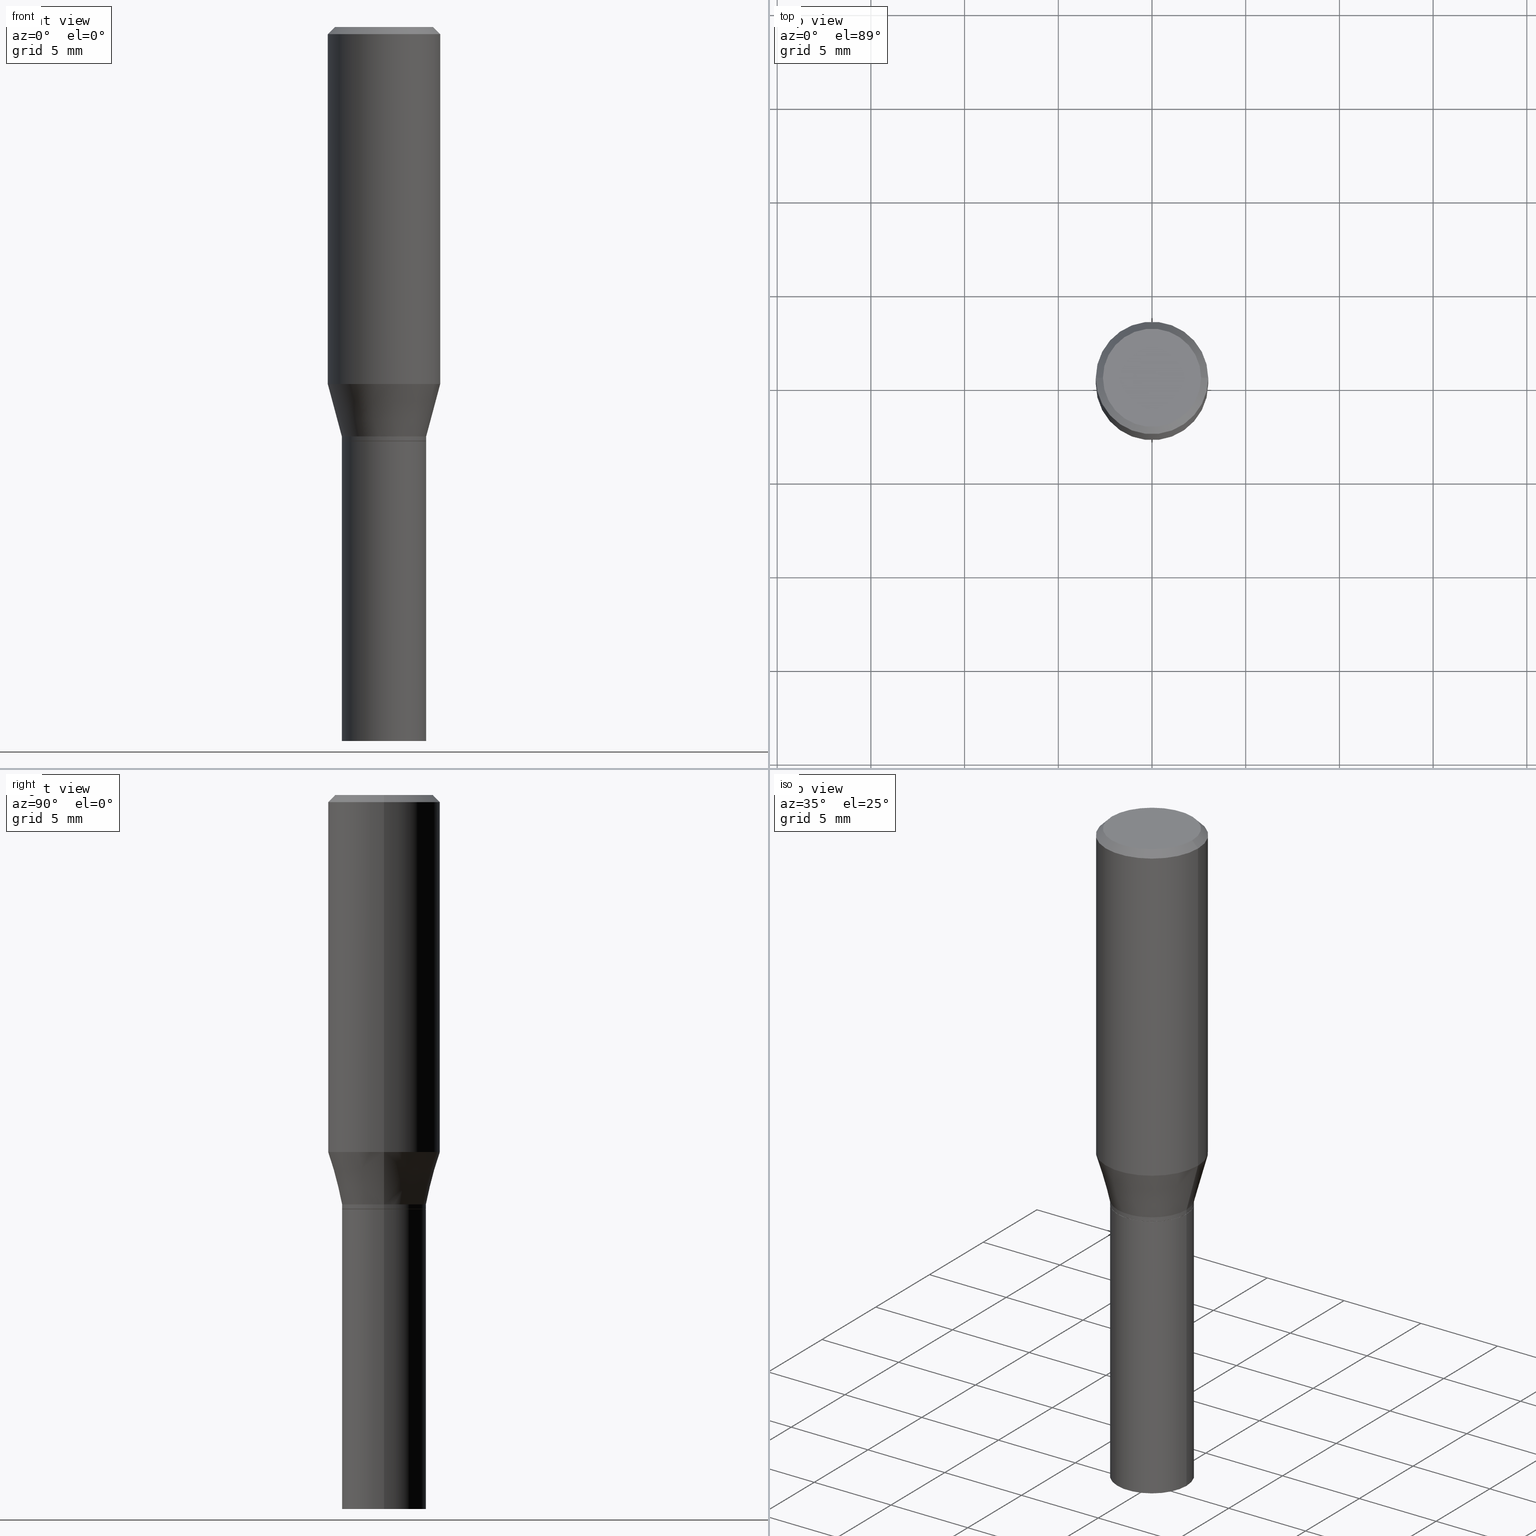
[diagram: canonical four-view strip — front | top / right | iso, engineering-drawing reading convention]
A machine part, canonical four-view strip (front | top / right | iso — engineering-drawing reading convention). The complete STEP part file that produces these views, byte-faithful:
ISO-10303-21;
HEADER;
FILE_DESCRIPTION (( 'STEP AP203' ),
    '1' );
FILE_NAME ('40133.STEP',
    '2024-03-12T19:09:31',
    ( '' ),
    ( '' ),
    'SwSTEP 2.0',
    'SolidWorks 2023',
    '' );
FILE_SCHEMA (( 'CONFIG_CONTROL_DESIGN' ));
ENDSEC;

DATA;
#1 = EDGE_LOOP ( 'NONE', ( #60, #261 ) ) ;
#2 = DIRECTION ( 'NONE',  ( 1.000000000000000000, -6.982962677686264344E-15, 0.000000000000000000 ) ) ;
#3 = EDGE_CURVE ( 'NONE', #172, #43, #121, .T. ) ;
#4 = DIRECTION ( 'NONE',  ( 1.000000000000000000, -6.982962677686266711E-15, 0.000000000000000000 ) ) ;
#5 = EDGE_CURVE ( 'NONE', #196, #43, #86, .T. ) ;
#6 = ORIENTED_EDGE ( 'NONE', *, *, #231, .T. ) ;
#7 = CARTESIAN_POINT ( 'NONE',  ( 0.1180999999999999966, -8.625970336194650129E-16, -0.01499999999999999944 ) ) ;
#8 = SECURITY_CLASSIFICATION ( '', '', #116 ) ;
#9 = EDGE_LOOP ( 'NONE', ( #229, #346, #397, #193 ) ) ;
#10 = CARTESIAN_POINT ( 'NONE',  ( 0.000000000000000000, 0.000000000000000000, 0.000000000000000000 ) ) ;
#11 = ORIENTED_EDGE ( 'NONE', *, *, #5, .F. ) ;
#12 = CC_DESIGN_PERSON_AND_ORGANIZATION_ASSIGNMENT ( #320, #284, ( #299 ) ) ;
#13 = CARTESIAN_POINT ( 'NONE',  ( 2.103347720199836549E-29, -3.003023099538990346E-15, -0.8601000000000001977 ) ) ;
#14 = EDGE_LOOP ( 'NONE', ( #377, #137, #6, #222 ) ) ;
#15 = EDGE_CURVE ( 'NONE', #196, #215, #207, .T. ) ;
#16 = CARTESIAN_POINT ( 'NONE',  ( 0.000000000000000000, 0.000000000000000000, 0.000000000000000000 ) ) ;
#17 = APPLICATION_CONTEXT ( 'configuration controlled 3d designs of mechanical parts and assemblies' ) ;
#18 = DIRECTION ( 'NONE',  ( -2.445468806185136597E-29, 3.491481338843145583E-15, 1.000000000000000000 ) ) ;
#19 = CONICAL_SURFACE ( 'NONE', #312, 0.08809999999999999776, 0.7853981633977384913 ) ;
#20 = AXIS2_PLACEMENT_3D ( 'NONE', #395, #26, #430 ) ;
#21 = CARTESIAN_POINT ( 'NONE',  ( 2.103347720199836549E-29, -3.003023099538990346E-15, -0.8601000000000001977 ) ) ;
#22 = CIRCLE ( 'NONE', #228, 0.08809999999999999776 ) ;
#23 = CARTESIAN_POINT ( 'NONE',  ( 2.127802408261687534E-29, -3.037937912927421601E-15, -0.8701000000000000956 ) ) ;
#24 = ORIENTED_EDGE ( 'NONE', *, *, #314, .T. ) ;
#25 = DIRECTION ( 'NONE',  ( -2.445468806185136877E-29, 3.491481338843145188E-15, 1.000000000000000000 ) ) ;
#26 = DIRECTION ( 'NONE',  ( -2.445468806185136597E-29, 3.491481338843145583E-15, 1.000000000000000000 ) ) ;
#27 = CIRCLE ( 'NONE', #414, 0.1180999999999999966 ) ;
#28 = ORIENTED_EDGE ( 'NONE', *, *, #462, .F. ) ;
#29 = CARTESIAN_POINT ( 'NONE',  ( 0.08860000000000006759, -6.186904932430037417E-16, 4.320292623355202268E-30 ) ) ;
#30 = CALENDAR_DATE ( 2024, 12, 3 ) ;
#31 = CARTESIAN_POINT ( 'NONE',  ( 0.08859999999999994269, -3.621713592781993299E-15, -0.8601000000000001977 ) ) ;
#32 = AXIS2_PLACEMENT_3D ( 'NONE', #301, #188, #266 ) ;
#33 = ORIENTED_EDGE ( 'NONE', *, *, #462, .T. ) ;
#34 = AXIS2_PLACEMENT_3D ( 'NONE', #457, #459, #165 ) ;
#35 = CARTESIAN_POINT ( 'NONE',  ( 1.834112612126108296E-29, -2.618626719906874490E-15, -0.7500045011767184633 ) ) ;
#36 = CARTESIAN_POINT ( 'NONE',  ( 0.1180999999999999966, -8.246878922347480654E-16, 5.758764772215000440E-30 ) ) ;
#37 = ORIENTED_EDGE ( 'NONE', *, *, #382, .T. ) ;
#38 = ADVANCED_FACE ( 'NONE', ( #157 ), #19, .T. ) ;
#39 = VERTEX_POINT ( 'NONE', #236 ) ;
#40 = VECTOR ( 'NONE', #25, 39.37007874015748143 ) ;
#41 = DATE_AND_TIME ( #438, #73 ) ;
#42 = DIRECTION ( 'NONE',  ( -2.445468806185136597E-29, 3.491481338843145583E-15, 1.000000000000000000 ) ) ;
#43 = VERTEX_POINT ( 'NONE', #270 ) ;
#44 = EDGE_CURVE ( 'NONE', #449, #196, #127, .T. ) ;
#45 = DIRECTION ( 'NONE',  ( 1.000000000000000000, -6.982962677686265922E-15, 4.876176775795935793E-29 ) ) ;
#46 = ORIENTED_EDGE ( 'NONE', *, *, #387, .T. ) ;
#47 = DIRECTION ( 'NONE',  ( -2.445468806185136877E-29, 3.491481338843145188E-15, 1.000000000000000000 ) ) ;
#48 = CARTESIAN_POINT ( 'NONE',  ( 0.08809999999999999776, -3.653136924831581152E-15, -0.8700999999999999845 ) ) ;
#49 = AXIS2_PLACEMENT_3D ( 'NONE', #417, #87, #91 ) ;
#50 = VECTOR ( 'NONE', #296, 39.37007874015747433 ) ;
#51 = EDGE_CURVE ( 'NONE', #286, #39, #319, .T. ) ;
#52 = PLANE ( 'NONE',  #147 ) ;
#53 = DIRECTION ( 'NONE',  ( 1.000000000000000000, -6.982962677686268288E-15, 0.000000000000000000 ) ) ;
#54 = CARTESIAN_POINT ( 'NONE',  ( -0.08859999999999994269, -2.373482235655541495E-15, -0.8601000000000001977 ) ) ;
#55 = DIRECTION ( 'NONE',  ( -0.2588190451025214611, 5.211531920934551042E-15, 0.9659258262890682012 ) ) ;
#56 = EDGE_CURVE ( 'NONE', #93, #291, #383, .T. ) ;
#57 = CIRCLE ( 'NONE', #295, 0.1180999999999999966 ) ;
#58 = DIRECTION ( 'NONE',  ( -2.445468806185136597E-29, 3.491481338843145583E-15, 1.000000000000000000 ) ) ;
#59 = CARTESIAN_POINT ( 'NONE',  ( 0.1180999999999999966, -3.443314612141622752E-15, -0.7500045011767184633 ) ) ;
#60 = ORIENTED_EDGE ( 'NONE', *, *, #69, .F. ) ;
#61 = PERSON_AND_ORGANIZATION ( #388, #315 ) ;
#62 = CC_DESIGN_APPROVAL ( #362, ( #299 ) ) ;
#63 =( NAMED_UNIT ( * ) PLANE_ANGLE_UNIT ( ) SI_UNIT ( $, .RADIAN. ) );
#64 = AXIS2_PLACEMENT_3D ( 'NONE', #21, #451, #123 ) ;
#65 = CARTESIAN_POINT ( 'NONE',  ( 0.000000000000000000, 0.000000000000000000, 0.000000000000000000 ) ) ;
#66 = DIRECTION ( 'NONE',  ( 1.000000000000000000, -6.982962677686266711E-15, 4.876176775795936353E-29 ) ) ;
#67 = ORIENTED_EDGE ( 'NONE', *, *, #56, .T. ) ;
#68 = FACE_OUTER_BOUND ( 'NONE', #343, .T. ) ;
#69 = EDGE_CURVE ( 'NONE', #93, #338, #456, .T. ) ;
#70 = DIRECTION ( 'NONE',  ( 2.438088387897960049E-29, -3.491481338843145188E-15, -1.000000000000000000 ) ) ;
#71 = AXIS2_PLACEMENT_3D ( 'NONE', #77, #437, #304 ) ;
#72 = EDGE_LOOP ( 'NONE', ( #33, #424, #351, #112 ) ) ;
#73 = LOCAL_TIME ( 15, 9, 31.00000000000000000, #378 ) ;
#74 = DIRECTION ( 'NONE',  ( 1.000000000000000000, -6.982962677686266711E-15, 4.876176775795936353E-29 ) ) ;
#75 = DATE_TIME_ROLE ( 'creation_date' ) ;
#76 = EDGE_CURVE ( 'NONE', #466, #365, #441, .T. ) ;
#77 = CARTESIAN_POINT ( 'NONE',  ( 4.647400995173613138E-45, -6.635256932220833331E-31, -1.900413116462290932E-16 ) ) ;
#78 = EDGE_LOOP ( 'NONE', ( #413, #24, #268, #381 ) ) ;
#79 = DATE_AND_TIME ( #411, #216 ) ;
#80 = DIRECTION ( 'NONE',  ( -0.7071067811865516806, 2.468850131082300842E-15, -0.7071067811865431318 ) ) ;
#81 = ORIENTED_EDGE ( 'NONE', *, *, #231, .F. ) ;
#82 = VECTOR ( 'NONE', #80, 39.37007874015748854 ) ;
#83 = FACE_OUTER_BOUND ( 'NONE', #350, .T. ) ;
#84 = ORIENTED_EDGE ( 'NONE', *, *, #387, .F. ) ;
#85 = CARTESIAN_POINT ( 'NONE',  ( 0.08859999999999999820, -6.186904932430032487E-16, 4.320292623355198765E-30 ) ) ;
#86 = LINE ( 'NONE', #54, #306 ) ;
#87 = DIRECTION ( 'NONE',  ( -2.445468806185136597E-29, 3.491481338843145583E-15, 1.000000000000000000 ) ) ;
#88 = AXIS2_PLACEMENT_3D ( 'NONE', #158, #454, #386 ) ;
#89 = CIRCLE ( 'NONE', #71, 0.1031000000000000111 ) ;
#90 = DIRECTION ( 'NONE',  ( 1.000000000000000000, -6.982962677686269077E-15, 0.000000000000000000 ) ) ;
#91 = DIRECTION ( 'NONE',  ( 1.000000000000000000, -6.982962677686263555E-15, 0.000000000000000000 ) ) ;
#92 = CC_DESIGN_PERSON_AND_ORGANIZATION_ASSIGNMENT ( #105, #436, ( #419 ) ) ;
#93 = VERTEX_POINT ( 'NONE', #252 ) ;
#94 = CARTESIAN_POINT ( 'NONE',  ( -0.08859999999999999820, 6.295408638834487519E-16, -4.358176489965846267E-30 ) ) ;
#95 = VERTEX_POINT ( 'NONE', #402 ) ;
#96 = VECTOR ( 'NONE', #160, 39.37007874015748143 ) ;
#97 = CIRCLE ( 'NONE', #34, 0.08859999999999999820 ) ;
#98 = CARTESIAN_POINT ( 'NONE',  ( -0.1180999999999999966, -4.963484990620824888E-16, -0.01499999999999999944 ) ) ;
#99 = EDGE_LOOP ( 'NONE', ( #279, #390, #150, #84 ) ) ;
#100 = APPLICATION_PROTOCOL_DEFINITION ( 'international standard', 'config_control_design', 1994, #17 ) ;
#101 = PLANE ( 'NONE',  #288 ) ;
#102 = ORIENTED_EDGE ( 'NONE', *, *, #326, .F. ) ;
#103 = CIRCLE ( 'NONE', #258, 0.08859999999999999820 ) ;
#104 = CYLINDRICAL_SURFACE ( 'NONE', #364, 0.1180999999999999966 ) ;
#105 = PERSON_AND_ORGANIZATION ( #388, #315 ) ;
#106 = UNCERTAINTY_MEASURE_WITH_UNIT (LENGTH_MEASURE( 1.000000000000000082E-05 ), #245, 'distance_accuracy_value', 'NONE');
#107 = EDGE_CURVE ( 'NONE', #291, #215, #435, .T. ) ;
#108 = CARTESIAN_POINT ( 'NONE',  ( 3.576687321579069994E-29, -5.368277968210015545E-15, -1.500000000000000222 ) ) ;
#109 = CC_DESIGN_DATE_AND_TIME_ASSIGNMENT ( #79, #253, ( #8 ) ) ;
#110 = PERSON_AND_ORGANIZATION_ROLE ( 'design_supplier' ) ;
#111 = CARTESIAN_POINT ( 'NONE',  ( 2.127802408261687534E-29, -3.037937912927420812E-15, -0.8700999999999999845 ) ) ;
#112 = ORIENTED_EDGE ( 'NONE', *, *, #107, .F. ) ;
#113 =( GEOMETRIC_REPRESENTATION_CONTEXT ( 3 ) GLOBAL_UNCERTAINTY_ASSIGNED_CONTEXT ( ( #106 ) ) GLOBAL_UNIT_ASSIGNED_CONTEXT ( ( #245, #63, #282 ) ) REPRESENTATION_CONTEXT ( 'NONE', 'WORKASPACE' ) );
#114 = DIRECTION ( 'NONE',  ( -1.000000000000000000, 6.982962677686265922E-15, -4.876176775795935793E-29 ) ) ;
#115 = ORIENTED_EDGE ( 'NONE', *, *, #326, .T. ) ;
#116 = SECURITY_CLASSIFICATION_LEVEL ( 'unclassified' ) ;
#117 = CARTESIAN_POINT ( 'NONE',  ( 3.668203209277705088E-31, -5.237222008264718399E-17, -0.01499999999999999944 ) ) ;
#118 = EDGE_LOOP ( 'NONE', ( #211, #401, #28, #275 ) ) ;
#119 = PLANE ( 'NONE',  #131 ) ;
#120 = ORIENTED_EDGE ( 'NONE', *, *, #316, .T. ) ;
#121 = CIRCLE ( 'NONE', #336, 0.1180999999999999966 ) ;
#122 = AXIS2_PLACEMENT_3D ( 'NONE', #108, #278, #173 ) ;
#123 = DIRECTION ( 'NONE',  ( 1.000000000000000000, -6.982962677686268288E-15, 0.000000000000000000 ) ) ;
#124 = DIRECTION ( 'NONE',  ( -2.445468806185136597E-29, 3.491481338843145583E-15, 1.000000000000000000 ) ) ;
#125 = CONICAL_SURFACE ( 'NONE', #169, 0.1180999999999999966, 0.7853981633974543852 ) ;
#126 = MANIFOLD_SOLID_BREP ( 'Body-Move/Copy2[2]', #265 ) ;
#127 = LINE ( 'NONE', #233, #96 ) ;
#128 = SHAPE_DEFINITION_REPRESENTATION ( #186, #318 ) ;
#129 = ADVANCED_FACE ( 'NONE', ( #68 ), #427, .F. ) ;
#130 = DIRECTION ( 'NONE',  ( -2.438088387897960049E-29, 3.491481338843145188E-15, 1.000000000000000000 ) ) ;
#131 = AXIS2_PLACEMENT_3D ( 'NONE', #374, #371, #448 ) ;
#132 = APPROVAL_PERSON_ORGANIZATION ( #223, #408, #177 ) ;
#133 = DIRECTION ( 'NONE',  ( -2.445468806185136597E-29, 3.491481338843145583E-15, 1.000000000000000000 ) ) ;
#134 = EDGE_CURVE ( 'NONE', #43, #466, #357, .T. ) ;
#135 = PRODUCT ( '40133', '40133', '', ( #243 ) ) ;
#136 = CARTESIAN_POINT ( 'NONE',  ( -0.08859999999999994269, -2.076478992314868894E-15, -0.8601000000000001977 ) ) ;
#137 = ORIENTED_EDGE ( 'NONE', *, *, #283, .T. ) ;
#138 = DIRECTION ( 'NONE',  ( -2.445468806185136597E-29, 3.491481338843145583E-15, 1.000000000000000000 ) ) ;
#139 = CC_DESIGN_PERSON_AND_ORGANIZATION_ASSIGNMENT ( #204, #428, ( #135 ) ) ;
#140 = DIRECTION ( 'NONE',  ( 1.000000000000000000, -6.982962677686266711E-15, 0.000000000000000000 ) ) ;
#141 = ORIENTED_EDGE ( 'NONE', *, *, #332, .F. ) ;
#142 = DIRECTION ( 'NONE',  ( 1.000000000000000000, -6.982962677686268288E-15, 0.000000000000000000 ) ) ;
#143 = ORIENTED_EDGE ( 'NONE', *, *, #5, .T. ) ;
#144 = DIRECTION ( 'NONE',  ( -2.445468806185136597E-29, 3.491481338843145583E-15, 1.000000000000000000 ) ) ;
#145 = EDGE_CURVE ( 'NONE', #153, #95, #103, .T. ) ;
#146 = EDGE_LOOP ( 'NONE', ( #375, #444, #141, #81 ) ) ;
#147 = AXIS2_PLACEMENT_3D ( 'NONE', #23, #130, #45 ) ;
#148 = FACE_OUTER_BOUND ( 'NONE', #367, .T. ) ;
#149 = VECTOR ( 'NONE', #380, 39.37007874015748854 ) ;
#150 = ORIENTED_EDGE ( 'NONE', *, *, #354, .T. ) ;
#151 = CALENDAR_DATE ( 2024, 12, 3 ) ;
#152 = LINE ( 'NONE', #415, #82 ) ;
#153 = VERTEX_POINT ( 'NONE', #167 ) ;
#154 = CARTESIAN_POINT ( 'NONE',  ( 0.1031000000000000111, -7.849571885948552706E-16, -1.900413116462238423E-16 ) ) ;
#155 = ORIENTED_EDGE ( 'NONE', *, *, #354, .F. ) ;
#156 = CARTESIAN_POINT ( 'NONE',  ( 2.126579673858595013E-29, -3.036192172257999703E-15, -0.8696000000000000396 ) ) ;
#157 = FACE_OUTER_BOUND ( 'NONE', #184, .T. ) ;
#158 = CARTESIAN_POINT ( 'NONE',  ( 0.000000000000000000, 0.000000000000000000, 0.000000000000000000 ) ) ;
#159 = DIRECTION ( 'NONE',  ( 0.7071067811867527420, -2.468850131084406312E-15, 0.7071067811863422925 ) ) ;
#160 = DIRECTION ( 'NONE',  ( -2.445468806185136877E-29, 3.491481338843145188E-15, 1.000000000000000000 ) ) ;
#161 = DIRECTION ( 'NONE',  ( -2.445468806185136597E-29, 3.491481338843145583E-15, 1.000000000000000000 ) ) ;
#162 = DIRECTION ( 'NONE',  ( -2.445468806185136597E-29, 3.491481338843145583E-15, 1.000000000000000000 ) ) ;
#163 = ADVANCED_FACE ( 'NONE', ( #287 ), #285, .T. ) ;
#164 = AXIS2_PLACEMENT_3D ( 'NONE', #400, #324, #140 ) ;
#165 = DIRECTION ( 'NONE',  ( 1.000000000000000000, -6.982962677686263555E-15, 0.000000000000000000 ) ) ;
#166 = DIRECTION ( 'NONE',  ( 1.000000000000000000, -6.982962677686269077E-15, 0.000000000000000000 ) ) ;
#167 = CARTESIAN_POINT ( 'NONE',  ( 0.08859999999999999820, -5.855912501507721918E-15, -1.500000000000000222 ) ) ;
#168 = APPROVAL_PERSON_ORGANIZATION ( #61, #362, #360 ) ;
#169 = AXIS2_PLACEMENT_3D ( 'NONE', #117, #221, #227 ) ;
#170 = VECTOR ( 'NONE', #355, 39.37007874015748143 ) ;
#171 = APPROVAL_DATE_TIME ( #175, #362 ) ;
#172 = VERTEX_POINT ( 'NONE', #59 ) ;
#173 = DIRECTION ( 'NONE',  ( 1.000000000000000000, -6.982962677686265922E-15, 4.876176775795935793E-29 ) ) ;
#174 = ADVANCED_FACE ( 'NONE', ( #359 ), #104, .T. ) ;
#175 = DATE_AND_TIME ( #30, #442 ) ;
#176 = ADVANCED_FACE ( 'NONE', ( #465 ), #429, .T. ) ;
#177 = APPROVAL_ROLE ( '' ) ;
#178 = CARTESIAN_POINT ( 'NONE',  ( 2.103347720199836549E-29, -3.003023099538990346E-15, -0.8601000000000001977 ) ) ;
#179 = EDGE_LOOP ( 'NONE', ( #297, #407, #333, #155 ) ) ;
#180 = DATE_AND_TIME ( #151, #385 ) ;
#181 = FACE_OUTER_BOUND ( 'NONE', #146, .T. ) ;
#182 = VERTEX_POINT ( 'NONE', #249 ) ;
#183 = CARTESIAN_POINT ( 'NONE',  ( -0.08859999999999999820, -3.508039096712621630E-15, -0.8701000000000000956 ) ) ;
#184 = EDGE_LOOP ( 'NONE', ( #203, #330, #67, #190 ) ) ;
#185 = APPROVAL_STATUS ( 'not_yet_approved' ) ;
#186 = PRODUCT_DEFINITION_SHAPE ( 'NONE', 'NONE',  #299 ) ;
#187 = AXIS2_PLACEMENT_3D ( 'NONE', #65, #461, #208 ) ;
#188 = DIRECTION ( 'NONE',  ( 2.445468806185136597E-29, -3.491481338843145583E-15, -1.000000000000000000 ) ) ;
#189 = AXIS2_PLACEMENT_3D ( 'NONE', #423, #162, #242 ) ;
#190 = ORIENTED_EDGE ( 'NONE', *, *, #340, .F. ) ;
#191 = APPROVAL_DATE_TIME ( #41, #344 ) ;
#192 = DIRECTION ( 'NONE',  ( -2.445468806185136597E-29, 3.491481338843145583E-15, 1.000000000000000000 ) ) ;
#193 = ORIENTED_EDGE ( 'NONE', *, *, #15, .F. ) ;
#194 = CC_DESIGN_PERSON_AND_ORGANIZATION_ASSIGNMENT ( #262, #403, ( #8 ) ) ;
#195 = LINE ( 'NONE', #94, #307 ) ;
#196 = VERTEX_POINT ( 'NONE', #136 ) ;
#197 = CARTESIAN_POINT ( 'NONE',  ( 0.1180999999999999966, -8.770601123173952432E-16, -0.01499999999999999944 ) ) ;
#198 = AXIS2_PLACEMENT_3D ( 'NONE', #13, #144, #260 ) ;
#199 = ADVANCED_FACE ( 'NONE', ( #431 ), #101, .F. ) ;
#200 = CARTESIAN_POINT ( 'NONE',  ( 2.103347720199836549E-29, -3.003023099538990346E-15, -0.8601000000000001977 ) ) ;
#201 = CARTESIAN_POINT ( 'NONE',  ( -0.08809999999999999776, -2.411949762722772465E-15, -0.8700999999999999845 ) ) ;
#202 = CIRCLE ( 'NONE', #218, 0.08859999999999994269 ) ;
#203 = ORIENTED_EDGE ( 'NONE', *, *, #394, .F. ) ;
#204 = PERSON_AND_ORGANIZATION ( #388, #315 ) ;
#205 = DIRECTION ( 'NONE',  ( 1.000000000000000000, -6.982962677686266711E-15, 4.876176775795935232E-29 ) ) ;
#206 = CC_DESIGN_APPROVAL ( #408, ( #419 ) ) ;
#207 = CIRCLE ( 'NONE', #463, 0.08859999999999994269 ) ;
#208 = DIRECTION ( 'NONE',  ( 1.000000000000000000, 0.000000000000000000, 0.000000000000000000 ) ) ;
#209 = ADVANCED_FACE ( 'NONE', ( #263 ), #119, .F. ) ;
#210 = CARTESIAN_POINT ( 'NONE',  ( 0.000000000000000000, 0.000000000000000000, 0.000000000000000000 ) ) ;
#211 = ORIENTED_EDGE ( 'NONE', *, *, #69, .T. ) ;
#212 = APPROVAL_STATUS ( 'not_yet_approved' ) ;
#213 = ORIENTED_EDGE ( 'NONE', *, *, #308, .F. ) ;
#214 = DIRECTION ( 'NONE',  ( -2.445468806185136597E-29, 3.491481338843145583E-15, 1.000000000000000000 ) ) ;
#215 = VERTEX_POINT ( 'NONE', #31 ) ;
#216 = LOCAL_TIME ( 15, 9, 31.00000000000000000, #257 ) ;
#217 = APPROVAL_DATE_TIME ( #180, #408 ) ;
#218 = AXIS2_PLACEMENT_3D ( 'NONE', #178, #42, #142 ) ;
#219 = CC_DESIGN_SECURITY_CLASSIFICATION ( #8, ( #419 ) ) ;
#220 = CARTESIAN_POINT ( 'NONE',  ( 2.127802408261687534E-29, -3.037937912927420812E-15, -0.8700999999999999845 ) ) ;
#221 = DIRECTION ( 'NONE',  ( 2.445468806185136597E-29, -3.491481338843145583E-15, -1.000000000000000000 ) ) ;
#222 = ORIENTED_EDGE ( 'NONE', *, *, #76, .F. ) ;
#223 = PERSON_AND_ORGANIZATION ( #388, #315 ) ;
#224 = DIRECTION ( 'NONE',  ( 1.000000000000000000, -6.982962677686269077E-15, 0.000000000000000000 ) ) ;
#225 = EDGE_LOOP ( 'NONE', ( #37, #46 ) ) ;
#226 = APPROVAL_STATUS ( 'not_yet_approved' ) ;
#227 = DIRECTION ( 'NONE',  ( -1.000000000000000000, 6.982962677686266711E-15, 0.000000000000000000 ) ) ;
#228 = AXIS2_PLACEMENT_3D ( 'NONE', #111, #439, #412 ) ;
#229 = ORIENTED_EDGE ( 'NONE', *, *, #44, .F. ) ;
#230 = FACE_OUTER_BOUND ( 'NONE', #72, .T. ) ;
#231 = EDGE_CURVE ( 'NONE', #172, #365, #293, .T. ) ;
#232 = DIRECTION ( 'NONE',  ( -2.445468806185136597E-29, 3.491481338843145583E-15, 1.000000000000000000 ) ) ;
#233 = CARTESIAN_POINT ( 'NONE',  ( -0.08860000000000006759, 6.295408638834492449E-16, -4.358176489965849770E-30 ) ) ;
#234 = ADVANCED_FACE ( 'NONE', ( #148 ), #434, .T. ) ;
#235 = LINE ( 'NONE', #201, #170 ) ;
#236 = CARTESIAN_POINT ( 'NONE',  ( -0.1031000000000000111, 7.461295621107772493E-16, -1.900413116462341961E-16 ) ) ;
#237 = VECTOR ( 'NONE', #331, 39.37007874015748143 ) ;
#238 = LOCAL_TIME ( 15, 9, 31.00000000000000000, #341 ) ;
#239 = EDGE_CURVE ( 'NONE', #39, #466, #152, .T. ) ;
#240 = CYLINDRICAL_SURFACE ( 'NONE', #88, 0.08860000000000006759 ) ;
#241 = EDGE_LOOP ( 'NONE', ( #115, #323 ) ) ;
#242 = DIRECTION ( 'NONE',  ( 1.000000000000000000, -6.982962677686265922E-15, 4.883331232093008327E-29 ) ) ;
#243 = MECHANICAL_CONTEXT ( 'NONE', #17, 'mechanical' ) ;
#244 = VECTOR ( 'NONE', #47, 39.37007874015748143 ) ;
#245 =( CONVERSION_BASED_UNIT ( 'INCH', #277 ) LENGTH_UNIT ( ) NAMED_UNIT ( #398 ) );
#246 = CARTESIAN_POINT ( 'NONE',  ( -0.1180999999999999966, 8.391509709326782957E-16, -5.809262341591043784E-30 ) ) ;
#247 = DIRECTION ( 'NONE',  ( -2.445468806185136597E-29, 3.491481338843145583E-15, 1.000000000000000000 ) ) ;
#248 = DIRECTION ( 'NONE',  ( -2.445468806185136877E-29, 3.491481338843145188E-15, 1.000000000000000000 ) ) ;
#249 = CARTESIAN_POINT ( 'NONE',  ( 0.08859999999999999820, -3.656628406170424159E-15, -0.8701000000000000956 ) ) ;
#250 = APPLICATION_CONTEXT ( 'configuration controlled 3d designs of mechanical parts and assemblies' ) ;
#251 = AXIS2_PLACEMENT_3D ( 'NONE', #309, #124, #254 ) ;
#252 = CARTESIAN_POINT ( 'NONE',  ( 0.08809999999999999776, -3.653136924831581152E-15, -0.8700999999999999845 ) ) ;
#253 = DATE_TIME_ROLE ( 'classification_date' ) ;
#254 = DIRECTION ( 'NONE',  ( 1.000000000000000000, -6.982962677686264344E-15, 0.000000000000000000 ) ) ;
#255 = LINE ( 'NONE', #329, #50 ) ;
#256 = CLOSED_SHELL ( 'NONE', ( #347, #129, #176, #199 ) ) ;
#257 = COORDINATED_UNIVERSAL_TIME_OFFSET ( 5, 0, .BEHIND. ) ;
#258 = AXIS2_PLACEMENT_3D ( 'NONE', #321, #138, #166 ) ;
#259 = DIRECTION ( 'NONE',  ( -2.445468806185136597E-29, 3.491481338843145583E-15, 1.000000000000000000 ) ) ;
#260 = DIRECTION ( 'NONE',  ( 1.000000000000000000, -6.982962677686268288E-15, 0.000000000000000000 ) ) ;
#261 = ORIENTED_EDGE ( 'NONE', *, *, #272, .F. ) ;
#262 = PERSON_AND_ORGANIZATION ( #388, #315 ) ;
#263 = FACE_OUTER_BOUND ( 'NONE', #241, .T. ) ;
#264 = ORIENTED_EDGE ( 'NONE', *, *, #314, .F. ) ;
#265 = CLOSED_SHELL ( 'NONE', ( #376, #271, #313, #303, #339, #334, #174, #234, #209, #420, #38, #163 ) ) ;
#266 = DIRECTION ( 'NONE',  ( -1.000000000000000000, 6.982962677686266711E-15, 0.000000000000000000 ) ) ;
#267 = AXIS2_PLACEMENT_3D ( 'NONE', #10, #259, #74 ) ;
#268 = ORIENTED_EDGE ( 'NONE', *, *, #332, .T. ) ;
#269 = LINE ( 'NONE', #85, #244 ) ;
#270 = CARTESIAN_POINT ( 'NONE',  ( -0.1180999999999999966, -1.779475748974195898E-15, -0.7500045011767184633 ) ) ;
#271 = ADVANCED_FACE ( 'NONE', ( #446 ), #426, .T. ) ;
#272 = EDGE_CURVE ( 'NONE', #338, #93, #22, .T. ) ;
#273 = ORIENTED_EDGE ( 'NONE', *, *, #239, .T. ) ;
#274 = CIRCLE ( 'NONE', #391, 0.08860000000000017861 ) ;
#275 = ORIENTED_EDGE ( 'NONE', *, *, #56, .F. ) ;
#276 = CC_DESIGN_PERSON_AND_ORGANIZATION_ASSIGNMENT ( #300, #110, ( #419 ) ) ;
#277 = LENGTH_MEASURE_WITH_UNIT ( LENGTH_MEASURE( 0.02539999999999999897 ), #356 );
#278 = DIRECTION ( 'NONE',  ( -2.438088387897960049E-29, 3.491481338843145188E-15, 1.000000000000000000 ) ) ;
#279 = ORIENTED_EDGE ( 'NONE', *, *, #432, .F. ) ;
#280 = VECTOR ( 'NONE', #464, 39.37007874015748143 ) ;
#281 = CIRCLE ( 'NONE', #405, 0.08859999999999999820 ) ;
#282 =( NAMED_UNIT ( * ) SI_UNIT ( $, .STERADIAN. ) SOLID_ANGLE_UNIT ( ) );
#283 = EDGE_CURVE ( 'NONE', #43, #172, #27, .T. ) ;
#284 = PERSON_AND_ORGANIZATION_ROLE ( 'creator' ) ;
#285 = CYLINDRICAL_SURFACE ( 'NONE', #389, 0.08860000000000006759 ) ;
#286 = VERTEX_POINT ( 'NONE', #154 ) ;
#287 = FACE_OUTER_BOUND ( 'NONE', #9, .T. ) ;
#288 = AXIS2_PLACEMENT_3D ( 'NONE', #396, #70, #114 ) ;
#289 = DIRECTION ( 'NONE',  ( -2.445468806185136597E-29, 3.491481338843145583E-15, 1.000000000000000000 ) ) ;
#290 = CC_DESIGN_DATE_AND_TIME_ASSIGNMENT ( #335, #75, ( #299 ) ) ;
#291 = VERTEX_POINT ( 'NONE', #406 ) ;
#292 = APPROVAL_ROLE ( '' ) ;
#293 = LINE ( 'NONE', #36, #237 ) ;
#294 = ORIENTED_EDGE ( 'NONE', *, *, #361, .F. ) ;
#295 = AXIS2_PLACEMENT_3D ( 'NONE', #443, #192, #4 ) ;
#296 = DIRECTION ( 'NONE',  ( 0.2588190451025214611, 1.565188264969621573E-15, 0.9659258262890682012 ) ) ;
#297 = ORIENTED_EDGE ( 'NONE', *, *, #145, .T. ) ;
#298 = MANIFOLD_SOLID_BREP ( 'Body-Move/Copy2[1]', #256 ) ;
#299 = PRODUCT_DEFINITION ( 'UNKNOWN', '', #419, #453 ) ;
#300 = PERSON_AND_ORGANIZATION ( #388, #315 ) ;
#301 = CARTESIAN_POINT ( 'NONE',  ( 3.668203209277705088E-31, -5.237222008264718399E-17, -0.01499999999999999944 ) ) ;
#302 = ORIENTED_EDGE ( 'NONE', *, *, #145, .F. ) ;
#303 = ADVANCED_FACE ( 'NONE', ( #181 ), #337, .T. ) ;
#304 = DIRECTION ( 'NONE',  ( 1.000000000000000000, -6.982962677686265922E-15, 4.883331232093008327E-29 ) ) ;
#305 = VERTEX_POINT ( 'NONE', #183 ) ;
#306 = VECTOR ( 'NONE', #55, 39.37007874015747433 ) ;
#307 = VECTOR ( 'NONE', #248, 39.37007874015748143 ) ;
#308 = EDGE_CURVE ( 'NONE', #215, #172, #255, .T. ) ;
#309 = CARTESIAN_POINT ( 'NONE',  ( 2.127802408261687534E-29, -3.037937912927420812E-15, -0.8700999999999999845 ) ) ;
#310 = DIRECTION ( 'NONE',  ( 1.000000000000000000, -6.982962677686266711E-15, 4.876176775795935232E-29 ) ) ;
#311 = ORIENTED_EDGE ( 'NONE', *, *, #76, .T. ) ;
#312 = AXIS2_PLACEMENT_3D ( 'NONE', #353, #452, #458 ) ;
#313 = ADVANCED_FACE ( 'NONE', ( #368 ), #125, .T. ) ;
#314 = EDGE_CURVE ( 'NONE', #286, #365, #404, .T. ) ;
#315 = ORGANIZATION ( 'UNSPECIFIED', 'UNSPECIFIED', '' ) ;
#316 = EDGE_CURVE ( 'NONE', #215, #196, #202, .T. ) ;
#317 = CARTESIAN_POINT ( 'NONE',  ( 0.000000000000000000, 0.000000000000000000, 0.000000000000000000 ) ) ;
#318 = ADVANCED_BREP_SHAPE_REPRESENTATION ( '40133', ( #298, #126, #187 ), #113 ) ;
#319 = CIRCLE ( 'NONE', #189, 0.1031000000000000111 ) ;
#320 = PERSON_AND_ORGANIZATION ( #388, #315 ) ;
#321 = CARTESIAN_POINT ( 'NONE',  ( 3.668203209277704895E-29, -5.237222008264718177E-15, -1.500000000000000222 ) ) ;
#322 = DIRECTION ( 'NONE',  ( -2.445468806185136597E-29, 3.491481338843145583E-15, 1.000000000000000000 ) ) ;
#323 = ORIENTED_EDGE ( 'NONE', *, *, #51, .T. ) ;
#324 = DIRECTION ( 'NONE',  ( -2.445468806185136597E-29, 3.491481338843145583E-15, 1.000000000000000000 ) ) ;
#325 = CONICAL_SURFACE ( 'NONE', #64, 0.08859999999999994269, 0.2617993877991501295 ) ;
#326 = EDGE_CURVE ( 'NONE', #39, #286, #89, .T. ) ;
#327 = COORDINATED_UNIVERSAL_TIME_OFFSET ( 5, 0, .BEHIND. ) ;
#328 = PERSON_AND_ORGANIZATION ( #388, #315 ) ;
#329 = CARTESIAN_POINT ( 'NONE',  ( 0.08859999999999994269, -3.621713592781993299E-15, -0.8601000000000001977 ) ) ;
#330 = ORIENTED_EDGE ( 'NONE', *, *, #272, .T. ) ;
#331 = DIRECTION ( 'NONE',  ( -2.445468806185136877E-29, 3.491481338843145188E-15, 1.000000000000000000 ) ) ;
#332 = EDGE_CURVE ( 'NONE', #365, #466, #57, .T. ) ;
#333 = ORIENTED_EDGE ( 'NONE', *, *, #382, .F. ) ;
#334 = ADVANCED_FACE ( 'NONE', ( #342 ), #399, .T. ) ;
#335 = DATE_AND_TIME ( #373, #238 ) ;
#336 = AXIS2_PLACEMENT_3D ( 'NONE', #418, #58, #460 ) ;
#337 = CYLINDRICAL_SURFACE ( 'NONE', #267, 0.1180999999999999966 ) ;
#338 = VERTEX_POINT ( 'NONE', #409 ) ;
#339 = ADVANCED_FACE ( 'NONE', ( #83 ), #325, .T. ) ;
#340 = EDGE_CURVE ( 'NONE', #449, #291, #274, .T. ) ;
#341 = COORDINATED_UNIVERSAL_TIME_OFFSET ( 5, 0, .BEHIND. ) ;
#342 = FACE_OUTER_BOUND ( 'NONE', #372, .T. ) ;
#343 = EDGE_LOOP ( 'NONE', ( #302, #294 ) ) ;
#344 = APPROVAL ( #226, 'UNSPECIFIED' ) ;
#345 = DIRECTION ( 'NONE',  ( -2.445468806185136597E-29, 3.491481338843145583E-15, 1.000000000000000000 ) ) ;
#346 = ORIENTED_EDGE ( 'NONE', *, *, #340, .T. ) ;
#347 = ADVANCED_FACE ( 'NONE', ( #352 ), #422, .T. ) ;
#348 = AXIS2_PLACEMENT_3D ( 'NONE', #210, #247, #205 ) ;
#349 = CC_DESIGN_APPROVAL ( #344, ( #8 ) ) ;
#350 = EDGE_LOOP ( 'NONE', ( #120, #143, #393, #213 ) ) ;
#351 = ORIENTED_EDGE ( 'NONE', *, *, #316, .F. ) ;
#352 = FACE_OUTER_BOUND ( 'NONE', #179, .T. ) ;
#353 = CARTESIAN_POINT ( 'NONE',  ( 2.127802408261687534E-29, -3.037937912927420812E-15, -0.8700999999999999845 ) ) ;
#354 = EDGE_CURVE ( 'NONE', #153, #182, #269, .T. ) ;
#355 = DIRECTION ( 'NONE',  ( -0.7071067811867527420, 7.493145998871095689E-15, 0.7071067811863422925 ) ) ;
#356 =( LENGTH_UNIT ( ) NAMED_UNIT ( * ) SI_UNIT ( $, .METRE. ) );
#357 = LINE ( 'NONE', #246, #280 ) ;
#358 = APPLICATION_PROTOCOL_DEFINITION ( 'international standard', 'config_control_design', 1994, #250 ) ;
#359 = FACE_OUTER_BOUND ( 'NONE', #14, .T. ) ;
#360 = APPROVAL_ROLE ( '' ) ;
#361 = EDGE_CURVE ( 'NONE', #95, #153, #281, .T. ) ;
#362 = APPROVAL ( #212, 'UNSPECIFIED' ) ;
#363 = CIRCLE ( 'NONE', #49, 0.08859999999999999820 ) ;
#364 = AXIS2_PLACEMENT_3D ( 'NONE', #317, #133, #66 ) ;
#365 = VERTEX_POINT ( 'NONE', #197 ) ;
#366 = COORDINATED_UNIVERSAL_TIME_OFFSET ( 5, 0, .BEHIND. ) ;
#367 = EDGE_LOOP ( 'NONE', ( #264, #102, #273, #311 ) ) ;
#368 = FACE_OUTER_BOUND ( 'NONE', #78, .T. ) ;
#369 = VECTOR ( 'NONE', #159, 39.37007874015748143 ) ;
#370 = CIRCLE ( 'NONE', #20, 0.08860000000000017861 ) ;
#371 = DIRECTION ( 'NONE',  ( 2.438088387897960049E-29, -3.491481338843145188E-15, -1.000000000000000000 ) ) ;
#372 = EDGE_LOOP ( 'NONE', ( #11, #410, #416, #447 ) ) ;
#373 = CALENDAR_DATE ( 2024, 12, 3 ) ;
#374 = CARTESIAN_POINT ( 'NONE',  ( 7.199434520694541042E-16, 0.1031000000000000111, -4.549923818578428559E-16 ) ) ;
#375 = ORIENTED_EDGE ( 'NONE', *, *, #3, .T. ) ;
#376 = ADVANCED_FACE ( 'NONE', ( #230 ), #240, .T. ) ;
#377 = ORIENTED_EDGE ( 'NONE', *, *, #134, .F. ) ;
#378 = COORDINATED_UNIVERSAL_TIME_OFFSET ( 5, 0, .BEHIND. ) ;
#379 = AXIS2_PLACEMENT_3D ( 'NONE', #220, #289, #2 ) ;
#380 = DIRECTION ( 'NONE',  ( 0.7071067811865516806, -7.319954787623268667E-15, -0.7071067811865431318 ) ) ;
#381 = ORIENTED_EDGE ( 'NONE', *, *, #239, .F. ) ;
#382 = EDGE_CURVE ( 'NONE', #182, #305, #363, .T. ) ;
#383 = LINE ( 'NONE', #48, #369 ) ;
#384 = FACE_OUTER_BOUND ( 'NONE', #1, .T. ) ;
#385 = LOCAL_TIME ( 15, 9, 31.00000000000000000, #327 ) ;
#386 = DIRECTION ( 'NONE',  ( 1.000000000000000000, -6.982962677686267499E-15, 4.876176775795935793E-29 ) ) ;
#387 = EDGE_CURVE ( 'NONE', #305, #182, #97, .T. ) ;
#388 = PERSON ( 'UNSPECIFIED', 'UNSPECIFIED', 'UNSPECIFIED', ('UNSPECIFIED'), ('UNSPECIFIED'), ('UNSPECIFIED') ) ;
#389 = AXIS2_PLACEMENT_3D ( 'NONE', #392, #322, #433 ) ;
#390 = ORIENTED_EDGE ( 'NONE', *, *, #361, .T. ) ;
#391 = AXIS2_PLACEMENT_3D ( 'NONE', #156, #345, #421 ) ;
#392 = CARTESIAN_POINT ( 'NONE',  ( 0.000000000000000000, 0.000000000000000000, 0.000000000000000000 ) ) ;
#393 = ORIENTED_EDGE ( 'NONE', *, *, #3, .F. ) ;
#394 = EDGE_CURVE ( 'NONE', #338, #449, #235, .T. ) ;
#395 = CARTESIAN_POINT ( 'NONE',  ( 2.126579673858595013E-29, -3.036192172257999703E-15, -0.8696000000000000396 ) ) ;
#396 = CARTESIAN_POINT ( 'NONE',  ( 6.186904932430243507E-16, 0.08859999999999695897, -0.8701000000000003176 ) ) ;
#397 = ORIENTED_EDGE ( 'NONE', *, *, #107, .T. ) ;
#398 = DIMENSIONAL_EXPONENTS ( 1.000000000000000000, 0.000000000000000000, 0.000000000000000000, 0.000000000000000000, 0.000000000000000000, 0.000000000000000000, 0.000000000000000000 ) ;
#399 = CONICAL_SURFACE ( 'NONE', #198, 0.08859999999999994269, 0.2617993877991501295 ) ;
#400 = CARTESIAN_POINT ( 'NONE',  ( 3.668203209277705088E-31, -5.237222008264718399E-17, -0.01499999999999999944 ) ) ;
#401 = ORIENTED_EDGE ( 'NONE', *, *, #394, .T. ) ;
#402 = CARTESIAN_POINT ( 'NONE',  ( -0.08859999999999999820, -3.508039096712621630E-15, -1.500000000000000222 ) ) ;
#403 = PERSON_AND_ORGANIZATION_ROLE ( 'classification_officer' ) ;
#404 = LINE ( 'NONE', #7, #149 ) ;
#405 = AXIS2_PLACEMENT_3D ( 'NONE', #455, #232, #90 ) ;
#406 = CARTESIAN_POINT ( 'NONE',  ( 0.08860000000000017861, -3.654882665501004233E-15, -0.8696000000000000396 ) ) ;
#407 = ORIENTED_EDGE ( 'NONE', *, *, #432, .T. ) ;
#408 = APPROVAL ( #185, 'UNSPECIFIED' ) ;
#409 = CARTESIAN_POINT ( 'NONE',  ( -0.08809999999999999776, -2.409300535548661264E-15, -0.8700999999999999845 ) ) ;
#410 = ORIENTED_EDGE ( 'NONE', *, *, #15, .T. ) ;
#411 = CALENDAR_DATE ( 2024, 12, 3 ) ;
#412 = DIRECTION ( 'NONE',  ( 1.000000000000000000, -6.982962677686264344E-15, 0.000000000000000000 ) ) ;
#413 = ORIENTED_EDGE ( 'NONE', *, *, #51, .F. ) ;
#414 = AXIS2_PLACEMENT_3D ( 'NONE', #35, #214, #224 ) ;
#415 = CARTESIAN_POINT ( 'NONE',  ( -0.1180999999999999966, 7.723156721521009862E-16, -0.01499999999999999944 ) ) ;
#416 = ORIENTED_EDGE ( 'NONE', *, *, #308, .T. ) ;
#417 = CARTESIAN_POINT ( 'NONE',  ( 2.127802408261687534E-29, -3.037937912927421601E-15, -0.8701000000000000956 ) ) ;
#418 = CARTESIAN_POINT ( 'NONE',  ( 1.834112612126108296E-29, -2.618626719906874490E-15, -0.7500045011767184633 ) ) ;
#419 = PRODUCT_DEFINITION_FORMATION_WITH_SPECIFIED_SOURCE ( 'ANY', '', #135, .NOT_KNOWN. ) ;
#420 = ADVANCED_FACE ( 'NONE', ( #384 ), #52, .F. ) ;
#421 = DIRECTION ( 'NONE',  ( 1.000000000000000000, -6.982962677686265922E-15, 0.000000000000000000 ) ) ;
#422 = CYLINDRICAL_SURFACE ( 'NONE', #450, 0.08859999999999999820 ) ;
#423 = CARTESIAN_POINT ( 'NONE',  ( 4.647400995173613138E-45, -6.635256932220833331E-31, -1.900413116462290932E-16 ) ) ;
#424 = ORIENTED_EDGE ( 'NONE', *, *, #44, .T. ) ;
#425 = CARTESIAN_POINT ( 'NONE',  ( -0.08860000000000017861, -2.406651308374549669E-15, -0.8696000000000000396 ) ) ;
#426 = CONICAL_SURFACE ( 'NONE', #379, 0.08809999999999999776, 0.7853981633977384913 ) ;
#427 = PLANE ( 'NONE',  #122 ) ;
#428 = PERSON_AND_ORGANIZATION_ROLE ( 'design_owner' ) ;
#429 = CYLINDRICAL_SURFACE ( 'NONE', #348, 0.08859999999999999820 ) ;
#430 = DIRECTION ( 'NONE',  ( 1.000000000000000000, -6.982962677686265922E-15, 0.000000000000000000 ) ) ;
#431 = FACE_OUTER_BOUND ( 'NONE', #225, .T. ) ;
#432 = EDGE_CURVE ( 'NONE', #95, #305, #195, .T. ) ;
#433 = DIRECTION ( 'NONE',  ( 1.000000000000000000, -6.982962677686267499E-15, 4.876176775795935793E-29 ) ) ;
#434 = CONICAL_SURFACE ( 'NONE', #32, 0.1180999999999999966, 0.7853981633974543852 ) ;
#435 = LINE ( 'NONE', #29, #40 ) ;
#436 = PERSON_AND_ORGANIZATION_ROLE ( 'creator' ) ;
#437 = DIRECTION ( 'NONE',  ( -2.445468806185136597E-29, 3.491481338843145583E-15, 1.000000000000000000 ) ) ;
#438 = CALENDAR_DATE ( 2024, 12, 3 ) ;
#439 = DIRECTION ( 'NONE',  ( -2.445468806185136597E-29, 3.491481338843145583E-15, 1.000000000000000000 ) ) ;
#440 = APPROVAL_PERSON_ORGANIZATION ( #328, #344, #292 ) ;
#441 = CIRCLE ( 'NONE', #164, 0.1180999999999999966 ) ;
#442 = LOCAL_TIME ( 15, 9, 31.00000000000000000, #366 ) ;
#443 = CARTESIAN_POINT ( 'NONE',  ( 3.668203209277705088E-31, -5.237222008264718399E-17, -0.01499999999999999944 ) ) ;
#444 = ORIENTED_EDGE ( 'NONE', *, *, #134, .T. ) ;
#445 = PRODUCT_RELATED_PRODUCT_CATEGORY ( 'detail', '', ( #135 ) ) ;
#446 = FACE_OUTER_BOUND ( 'NONE', #118, .T. ) ;
#447 = ORIENTED_EDGE ( 'NONE', *, *, #283, .F. ) ;
#448 = DIRECTION ( 'NONE',  ( -1.000000000000000000, 6.982962677686265922E-15, -4.876176775795935793E-29 ) ) ;
#449 = VERTEX_POINT ( 'NONE', #425 ) ;
#450 = AXIS2_PLACEMENT_3D ( 'NONE', #16, #161, #310 ) ;
#451 = DIRECTION ( 'NONE',  ( -2.445468806185136597E-29, 3.491481338843145583E-15, 1.000000000000000000 ) ) ;
#452 = DIRECTION ( 'NONE',  ( -2.445468806185136597E-29, 3.491481338843145583E-15, 1.000000000000000000 ) ) ;
#453 = DESIGN_CONTEXT ( 'detailed design', #250, 'design' ) ;
#454 = DIRECTION ( 'NONE',  ( -2.445468806185136597E-29, 3.491481338843145583E-15, 1.000000000000000000 ) ) ;
#455 = CARTESIAN_POINT ( 'NONE',  ( 3.668203209277704895E-29, -5.237222008264718177E-15, -1.500000000000000222 ) ) ;
#456 = CIRCLE ( 'NONE', #251, 0.08809999999999999776 ) ;
#457 = CARTESIAN_POINT ( 'NONE',  ( 2.127802408261687534E-29, -3.037937912927421601E-15, -0.8701000000000000956 ) ) ;
#458 = DIRECTION ( 'NONE',  ( 1.000000000000000000, -6.982962677686264344E-15, 0.000000000000000000 ) ) ;
#459 = DIRECTION ( 'NONE',  ( -2.445468806185136597E-29, 3.491481338843145583E-15, 1.000000000000000000 ) ) ;
#460 = DIRECTION ( 'NONE',  ( 1.000000000000000000, -6.982962677686269077E-15, 0.000000000000000000 ) ) ;
#461 = DIRECTION ( 'NONE',  ( 0.000000000000000000, 0.000000000000000000, 1.000000000000000000 ) ) ;
#462 = EDGE_CURVE ( 'NONE', #291, #449, #370, .T. ) ;
#463 = AXIS2_PLACEMENT_3D ( 'NONE', #200, #18, #53 ) ;
#464 = DIRECTION ( 'NONE',  ( -2.445468806185136877E-29, 3.491481338843145188E-15, 1.000000000000000000 ) ) ;
#465 = FACE_OUTER_BOUND ( 'NONE', #99, .T. ) ;
#466 = VERTEX_POINT ( 'NONE', #98 ) ;
ENDSEC;
END-ISO-10303-21;
